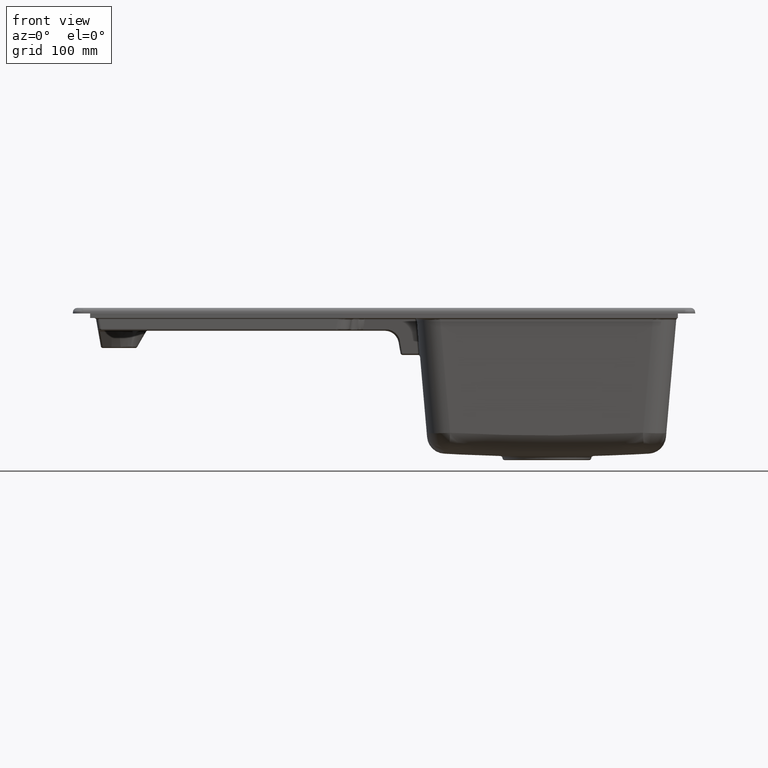
[diagram: clean part render]
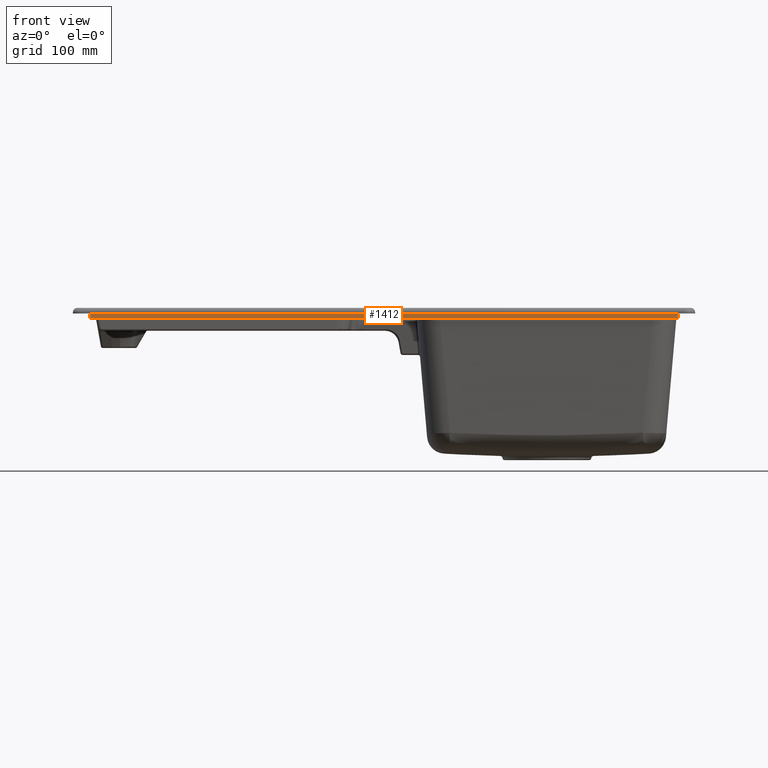
[diagram: same view with one face highlighted and labeled with its STEP entity id]
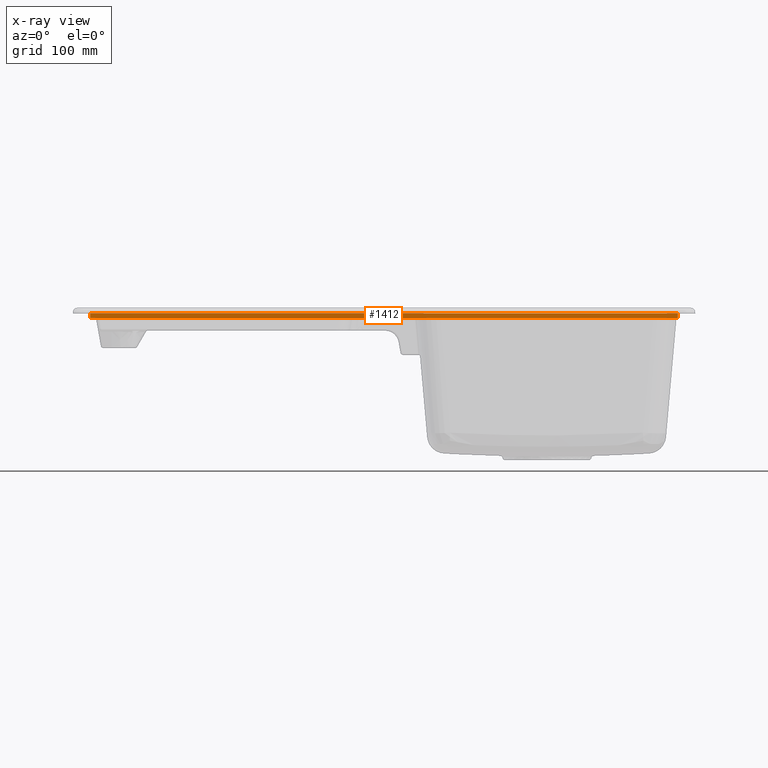
[diagram: x-ray of the same camera — body ghosted, the highlighted face saturated]
A machine part, front view. The second image highlights one B-rep face of the part: STEP entity #1412.
The next image is the same camera in x-ray: the body ghosted, the highlighted face saturated — about 0% of this face is hidden behind the body in this view.
In plain terms, the highlighted planar face has unit normal (-0, 1, 0).
Its self-contained STEP definition (entity closure, byte-faithful):
#303=PLANE('',#5560);
#829=LINE('',#12303,#1061);
#831=LINE('',#12307,#1063);
#832=LINE('',#12311,#1064);
#833=LINE('',#12332,#1065);
#834=LINE('',#12336,#1066);
#835=LINE('',#12355,#1067);
#879=LINE('',#13560,#1111);
#883=LINE('',#13568,#1115);
#884=LINE('',#13572,#1116);
#885=LINE('',#13574,#1117);
#886=LINE('',#13576,#1118);
#887=LINE('',#13578,#1119);
#1061=VECTOR('',#6323,1.);
#1063=VECTOR('',#6327,1.);
#1064=VECTOR('',#6332,1.);
#1065=VECTOR('',#6335,1.);
#1066=VECTOR('',#6340,1.);
#1067=VECTOR('',#6341,1.);
#1111=VECTOR('',#6593,1.);
#1115=VECTOR('',#6599,1.);
#1116=VECTOR('',#6604,1.);
#1117=VECTOR('',#6605,1.);
#1118=VECTOR('',#6606,1.);
#1119=VECTOR('',#6607,1.);
#1412=ADVANCED_FACE('',(#1763),#303,.F.);
#1763=FACE_OUTER_BOUND('',#2103,.T.);
#2103=EDGE_LOOP('',(#3345,#3346,#3347,#3348,#3349,#3350,#3351,#3352,#3353,
#3354,#3355,#3356));
#3345=ORIENTED_EDGE('',*,*,#4637,.T.);
#3346=ORIENTED_EDGE('',*,*,#4639,.T.);
#3347=ORIENTED_EDGE('',*,*,#4641,.T.);
#3348=ORIENTED_EDGE('',*,*,#4643,.T.);
#3349=ORIENTED_EDGE('',*,*,#4645,.T.);
#3350=ORIENTED_EDGE('',*,*,#4802,.F.);
#3351=ORIENTED_EDGE('',*,*,#4803,.F.);
#3352=ORIENTED_EDGE('',*,*,#4804,.F.);
#3353=ORIENTED_EDGE('',*,*,#4805,.F.);
#3354=ORIENTED_EDGE('',*,*,#4800,.T.);
#3355=ORIENTED_EDGE('',*,*,#4796,.T.);
#3356=ORIENTED_EDGE('',*,*,#4646,.T.);
#3916=VERTEX_POINT('',#10641);
#4019=VERTEX_POINT('',#12302);
#4020=VERTEX_POINT('',#12304);
#4021=VERTEX_POINT('',#12310);
#4022=VERTEX_POINT('',#12331);
#4023=VERTEX_POINT('',#12335);
#4024=VERTEX_POINT('',#12356);
#4100=VERTEX_POINT('',#13561);
#4103=VERTEX_POINT('',#13569);
#4104=VERTEX_POINT('',#13573);
#4105=VERTEX_POINT('',#13575);
#4106=VERTEX_POINT('',#13577);
#4637=EDGE_CURVE('',#4020,#4019,#829,.T.);
#4639=EDGE_CURVE('',#4019,#3916,#831,.T.);
#4641=EDGE_CURVE('',#3916,#4021,#832,.T.);
#4643=EDGE_CURVE('',#4021,#4022,#833,.T.);
#4645=EDGE_CURVE('',#4022,#4023,#834,.T.);
#4646=EDGE_CURVE('',#4024,#4020,#835,.T.);
#4796=EDGE_CURVE('',#4100,#4024,#879,.T.);
#4800=EDGE_CURVE('',#4103,#4100,#883,.T.);
#4802=EDGE_CURVE('',#4104,#4023,#884,.T.);
#4803=EDGE_CURVE('',#4105,#4104,#885,.T.);
#4804=EDGE_CURVE('',#4106,#4105,#886,.T.);
#4805=EDGE_CURVE('',#4103,#4106,#887,.T.);
#5560=AXIS2_PLACEMENT_3D('',#13579,#6608,#6609);
#6323=DIRECTION('',(0.,0.,-1.));
#6327=DIRECTION('',(1.,3.91843420455938E-16,0.));
#6332=DIRECTION('',(1.,3.91843420455938E-16,0.));
#6335=DIRECTION('',(1.,3.91843420455938E-16,0.));
#6340=DIRECTION('',(1.,3.91843420455938E-16,0.));
#6341=DIRECTION('',(-1.,-3.91843420455938E-16,0.));
#6593=DIRECTION('',(0.,0.,1.));
#6599=DIRECTION('',(1.,3.91843420455938E-16,0.));
#6604=DIRECTION('',(-1.,-3.91843420455938E-16,0.));
#6605=DIRECTION('',(-1.,-3.91843420455938E-16,0.));
#6606=DIRECTION('',(-1.,-3.91843420455938E-16,0.));
#6607=DIRECTION('',(-1.,-3.91843420455938E-16,0.));
#6608=DIRECTION('',(-3.91843420455938E-16,1.,0.));
#6609=DIRECTION('',(1.,3.88578058618805E-16,0.));
#10641=CARTESIAN_POINT('',(-416.328826707332,-230.,-14.54));
#12302=CARTESIAN_POINT('',(-425.,-230.,-14.54));
#12303=CARTESIAN_POINT('',(-425.,-230.,-8.));
#12304=CARTESIAN_POINT('',(-425.,-230.,-8.));
#12307=CARTESIAN_POINT('',(1.1854569613527E-13,-230.,-14.54));
#12310=CARTESIAN_POINT('',(-411.213096385498,-230.,-14.5400000000001));
#12311=CARTESIAN_POINT('',(1.1854569613527E-13,-230.,-14.54));
#12331=CARTESIAN_POINT('',(-67.1633340034793,-230.,-14.5400000000001));
#12332=CARTESIAN_POINT('',(1.1854569613527E-13,-230.,-14.54));
#12335=CARTESIAN_POINT('',(-58.0139092632271,-230.,-14.54));
#12336=CARTESIAN_POINT('',(1.1854569613527E-13,-230.,-14.54));
#12355=CARTESIAN_POINT('',(425.,-230.,-8.));
#12356=CARTESIAN_POINT('',(425.,-230.,-8.));
#13560=CARTESIAN_POINT('',(425.,-230.,-8.));
#13561=CARTESIAN_POINT('',(425.,-230.,-14.54));
#13568=CARTESIAN_POINT('',(1.1854569613527E-13,-230.,-14.54));
#13569=CARTESIAN_POINT('',(394.921346092702,-230.,-14.54));
#13572=CARTESIAN_POINT('',(1.1854569613527E-13,-230.,-14.54));
#13573=CARTESIAN_POINT('',(75.0786539072982,-230.,-14.54));
#13574=CARTESIAN_POINT('',(1.1854569613527E-13,-230.,-14.54));
#13575=CARTESIAN_POINT('',(81.3246170032297,-230.,-14.54));
#13576=CARTESIAN_POINT('',(1.1854569613527E-13,-230.,-14.54));
#13577=CARTESIAN_POINT('',(388.67538299677,-230.,-14.54));
#13578=CARTESIAN_POINT('',(1.1854569613527E-13,-230.,-14.54));
#13579=CARTESIAN_POINT('',(-425.,-230.,-8.));